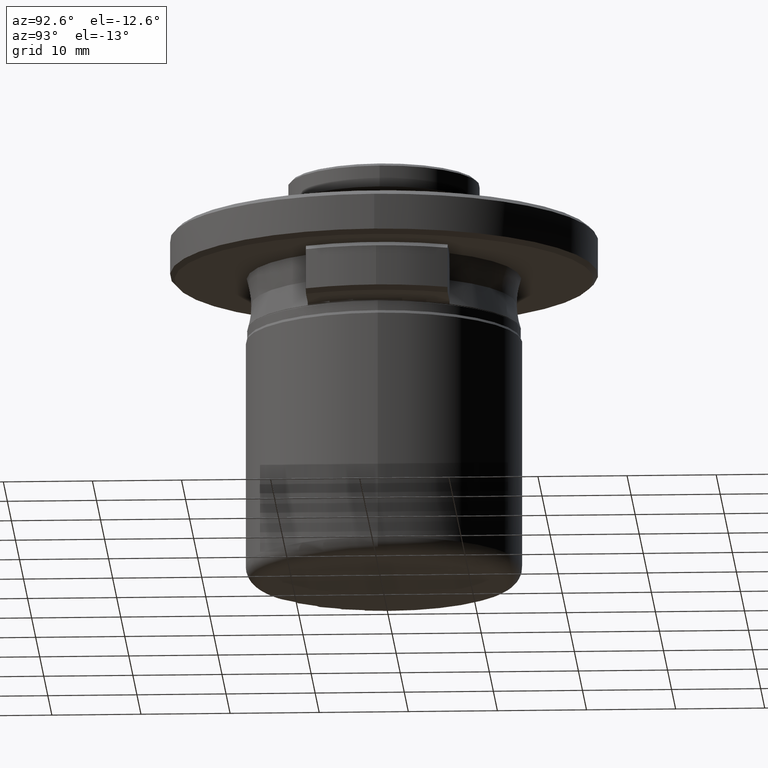
[diagram: clean part render]
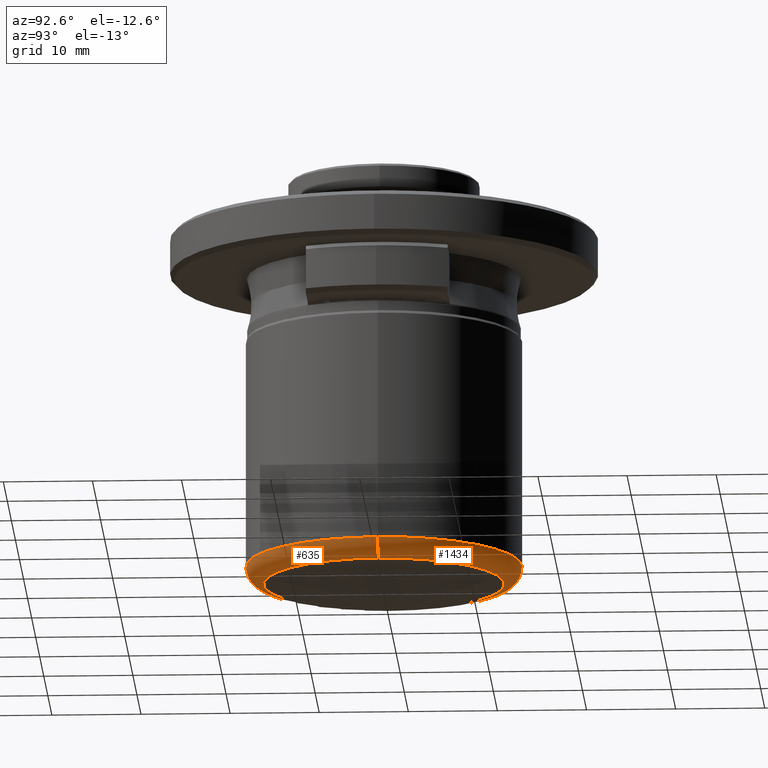
[diagram: same view with one multi-face feature highlighted, each face labeled with its STEP entity id]
A machine part, auxiliary view. The highlighted faces form ONE feature: a constant-radius fillet chain: 2 tangent blend faces with common blend radius 2 mm. The faces share edges in the B-rep.
Their STEP definitions:
[1] entity #1434 (Torus):
#81 = CARTESIAN_POINT ( 'NONE',  ( 15.50000000000000000, 0.0000000000000000000, -25.56151438499999900 ) ) ;
#109 = AXIS2_PLACEMENT_3D ( 'NONE', #950, #366, #202 ) ;
#110 = DIRECTION ( 'NONE',  ( 0.0000000000000000000, 0.0000000000000000000, 1.000000000000000000 ) ) ;
#113 = DIRECTION ( 'NONE',  ( 0.0000000000000000000, 0.0000000000000000000, 1.000000000000000000 ) ) ;
#139 = TOROIDAL_SURFACE ( 'NONE', #1893, 13.50000000000000000, 2.000000000000000000 ) ;
#140 = CIRCLE ( 'NONE', #1800, 13.50000000000000000 ) ;
#202 = DIRECTION ( 'NONE',  ( 0.0000000000000000000, 0.0000000000000000000, -1.000000000000000000 ) ) ;
#297 = CARTESIAN_POINT ( 'NONE',  ( -15.50000000000000000, 1.898202538678397600E-015, -25.56151438499999900 ) ) ;
#366 = DIRECTION ( 'NONE',  ( 0.0000000000000000000, -1.000000000000000000, 0.0000000000000000000 ) ) ;
#383 = EDGE_CURVE ( 'NONE', #1303, #1745, #1428, .T. ) ;
#429 = ORIENTED_EDGE ( 'NONE', *, *, #383, .F. ) ;
#606 = EDGE_CURVE ( 'NONE', #1884, #731, #1113, .T. ) ;
#731 = VERTEX_POINT ( 'NONE', #297 ) ;
#776 = CARTESIAN_POINT ( 'NONE',  ( 0.0000000000000000000, 0.0000000000000000000, -27.56151438499999900 ) ) ;
#855 = CARTESIAN_POINT ( 'NONE',  ( 0.0000000000000000000, 0.0000000000000000000, -25.56151438499999900 ) ) ;
#856 = DIRECTION ( 'NONE',  ( 1.224646799147353200E-016, 1.000000000000000000, -0.0000000000000000000 ) ) ;
#864 = EDGE_CURVE ( 'NONE', #1884, #1303, #140, .T. ) ;
#867 = ORIENTED_EDGE ( 'NONE', *, *, #606, .T. ) ;
#893 = ORIENTED_EDGE ( 'NONE', *, *, #1429, .F. ) ;
#921 = DIRECTION ( 'NONE',  ( 1.000000000000000000, 0.0000000000000000000, 0.0000000000000000000 ) ) ;
#950 = CARTESIAN_POINT ( 'NONE',  ( 13.50000000000000000, 0.0000000000000000000, -25.56151438499999900 ) ) ;
#965 = EDGE_LOOP ( 'NONE', ( #1494, #867, #893, #429 ) ) ;
#1005 = CARTESIAN_POINT ( 'NONE',  ( 0.0000000000000000000, 0.0000000000000000000, -25.56151438499999900 ) ) ;
#1113 = CIRCLE ( 'NONE', #1738, 2.000000000000000000 ) ;
#1114 = CARTESIAN_POINT ( 'NONE',  ( 13.50000000000000000, 0.0000000000000000000, -27.56151438499999900 ) ) ;
#1156 = DIRECTION ( 'NONE',  ( 1.000000000000000000, 0.0000000000000000000, 0.0000000000000000000 ) ) ;
#1297 = DIRECTION ( 'NONE',  ( 1.000000000000000000, 0.0000000000000000000, 0.0000000000000000000 ) ) ;
#1303 = VERTEX_POINT ( 'NONE', #1114 ) ;
#1319 = CIRCLE ( 'NONE', #1688, 15.50000000000000000 ) ;
#1428 = CIRCLE ( 'NONE', #109, 2.000000000000001800 ) ;
#1429 = EDGE_CURVE ( 'NONE', #1745, #731, #1319, .T. ) ;
#1434 = ADVANCED_FACE ( 'NONE', ( #1663 ), #139, .T. ) ;
#1438 = CARTESIAN_POINT ( 'NONE',  ( -13.50000000000000000, 1.775737858763662000E-015, -27.56151438499999900 ) ) ;
#1494 = ORIENTED_EDGE ( 'NONE', *, *, #864, .F. ) ;
#1663 = FACE_OUTER_BOUND ( 'NONE', #965, .T. ) ;
#1688 = AXIS2_PLACEMENT_3D ( 'NONE', #1005, #113, #1156 ) ;
#1736 = CARTESIAN_POINT ( 'NONE',  ( -13.50000000000000000, 1.653273178848926900E-015, -25.56151438499999900 ) ) ;
#1738 = AXIS2_PLACEMENT_3D ( 'NONE', #1736, #856, #1890 ) ;
#1745 = VERTEX_POINT ( 'NONE', #81 ) ;
#1799 = DIRECTION ( 'NONE',  ( -0.0000000000000000000, -0.0000000000000000000, -1.000000000000000000 ) ) ;
#1800 = AXIS2_PLACEMENT_3D ( 'NONE', #776, #1799, #921 ) ;
#1884 = VERTEX_POINT ( 'NONE', #1438 ) ;
#1890 = DIRECTION ( 'NONE',  ( -1.000000000000000000, 1.224646799147353500E-016, 0.0000000000000000000 ) ) ;
#1893 = AXIS2_PLACEMENT_3D ( 'NONE', #855, #110, #1297 ) ;
[2] entity #635 (Torus):
#81 = CARTESIAN_POINT ( 'NONE',  ( 15.50000000000000000, 0.0000000000000000000, -25.56151438499999900 ) ) ;
#109 = AXIS2_PLACEMENT_3D ( 'NONE', #950, #366, #202 ) ;
#176 = CIRCLE ( 'NONE', #329, 15.50000000000000000 ) ;
#202 = DIRECTION ( 'NONE',  ( 0.0000000000000000000, 0.0000000000000000000, -1.000000000000000000 ) ) ;
#218 = AXIS2_PLACEMENT_3D ( 'NONE', #431, #715, #1743 ) ;
#243 = AXIS2_PLACEMENT_3D ( 'NONE', #617, #1646, #772 ) ;
#262 = CIRCLE ( 'NONE', #243, 13.50000000000000000 ) ;
#297 = CARTESIAN_POINT ( 'NONE',  ( -15.50000000000000000, 1.898202538678397600E-015, -25.56151438499999900 ) ) ;
#329 = AXIS2_PLACEMENT_3D ( 'NONE', #1599, #730, #1751 ) ;
#366 = DIRECTION ( 'NONE',  ( 0.0000000000000000000, -1.000000000000000000, 0.0000000000000000000 ) ) ;
#383 = EDGE_CURVE ( 'NONE', #1303, #1745, #1428, .T. ) ;
#431 = CARTESIAN_POINT ( 'NONE',  ( 0.0000000000000000000, 0.0000000000000000000, -25.56151438499999900 ) ) ;
#457 = ORIENTED_EDGE ( 'NONE', *, *, #642, .F. ) ;
#606 = EDGE_CURVE ( 'NONE', #1884, #731, #1113, .T. ) ;
#617 = CARTESIAN_POINT ( 'NONE',  ( 0.0000000000000000000, 0.0000000000000000000, -27.56151438499999900 ) ) ;
#635 = ADVANCED_FACE ( 'NONE', ( #1401 ), #672, .T. ) ;
#642 = EDGE_CURVE ( 'NONE', #731, #1745, #176, .T. ) ;
#672 = TOROIDAL_SURFACE ( 'NONE', #218, 13.50000000000000000, 2.000000000000000000 ) ;
#715 = DIRECTION ( 'NONE',  ( 0.0000000000000000000, 0.0000000000000000000, 1.000000000000000000 ) ) ;
#730 = DIRECTION ( 'NONE',  ( 0.0000000000000000000, 0.0000000000000000000, 1.000000000000000000 ) ) ;
#731 = VERTEX_POINT ( 'NONE', #297 ) ;
#772 = DIRECTION ( 'NONE',  ( 1.000000000000000000, 0.0000000000000000000, 0.0000000000000000000 ) ) ;
#856 = DIRECTION ( 'NONE',  ( 1.224646799147353200E-016, 1.000000000000000000, -0.0000000000000000000 ) ) ;
#950 = CARTESIAN_POINT ( 'NONE',  ( 13.50000000000000000, 0.0000000000000000000, -25.56151438499999900 ) ) ;
#1104 = EDGE_CURVE ( 'NONE', #1303, #1884, #262, .T. ) ;
#1113 = CIRCLE ( 'NONE', #1738, 2.000000000000000000 ) ;
#1114 = CARTESIAN_POINT ( 'NONE',  ( 13.50000000000000000, 0.0000000000000000000, -27.56151438499999900 ) ) ;
#1303 = VERTEX_POINT ( 'NONE', #1114 ) ;
#1311 = ORIENTED_EDGE ( 'NONE', *, *, #1104, .F. ) ;
#1401 = FACE_OUTER_BOUND ( 'NONE', #1753, .T. ) ;
#1410 = ORIENTED_EDGE ( 'NONE', *, *, #606, .F. ) ;
#1428 = CIRCLE ( 'NONE', #109, 2.000000000000001800 ) ;
#1438 = CARTESIAN_POINT ( 'NONE',  ( -13.50000000000000000, 1.775737858763662000E-015, -27.56151438499999900 ) ) ;
#1503 = ORIENTED_EDGE ( 'NONE', *, *, #383, .T. ) ;
#1599 = CARTESIAN_POINT ( 'NONE',  ( 0.0000000000000000000, 0.0000000000000000000, -25.56151438499999900 ) ) ;
#1646 = DIRECTION ( 'NONE',  ( -0.0000000000000000000, -0.0000000000000000000, -1.000000000000000000 ) ) ;
#1736 = CARTESIAN_POINT ( 'NONE',  ( -13.50000000000000000, 1.653273178848926900E-015, -25.56151438499999900 ) ) ;
#1738 = AXIS2_PLACEMENT_3D ( 'NONE', #1736, #856, #1890 ) ;
#1743 = DIRECTION ( 'NONE',  ( 1.000000000000000000, 0.0000000000000000000, 0.0000000000000000000 ) ) ;
#1745 = VERTEX_POINT ( 'NONE', #81 ) ;
#1751 = DIRECTION ( 'NONE',  ( 1.000000000000000000, 0.0000000000000000000, 0.0000000000000000000 ) ) ;
#1753 = EDGE_LOOP ( 'NONE', ( #1410, #1311, #1503, #457 ) ) ;
#1884 = VERTEX_POINT ( 'NONE', #1438 ) ;
#1890 = DIRECTION ( 'NONE',  ( -1.000000000000000000, 1.224646799147353500E-016, 0.0000000000000000000 ) ) ;